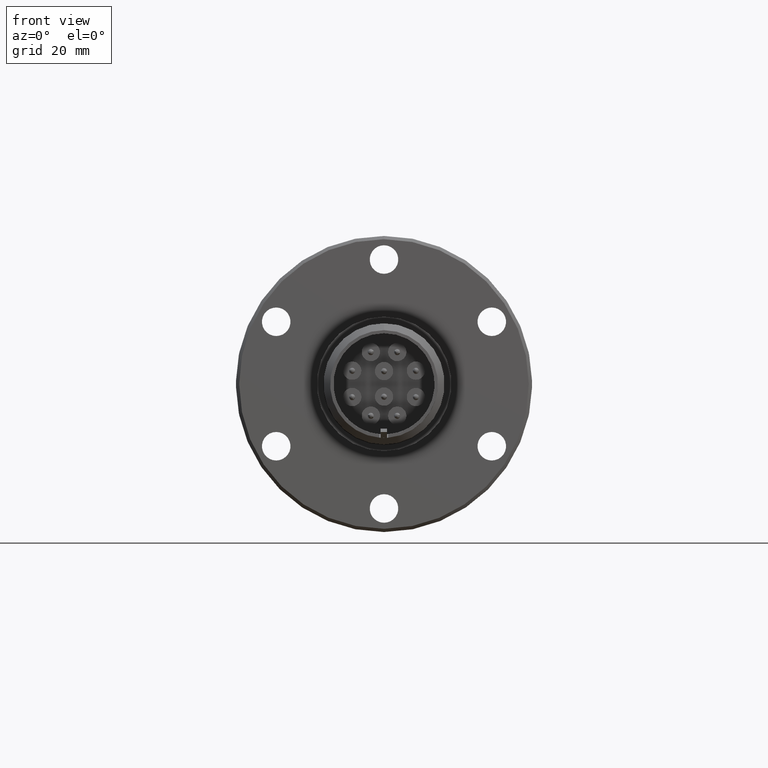
[diagram: clean part render]
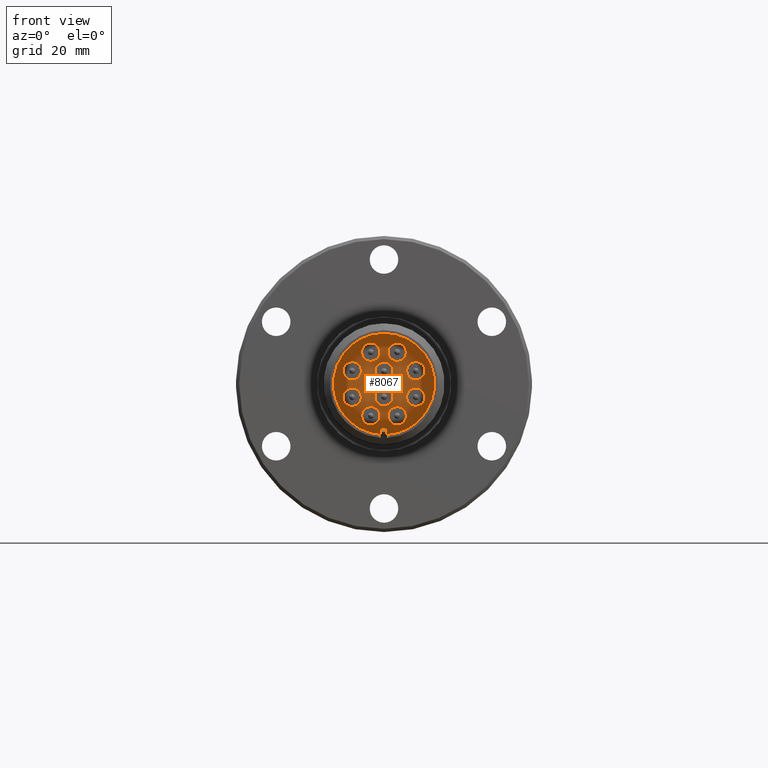
[diagram: same view with one face highlighted and labeled with its STEP entity id]
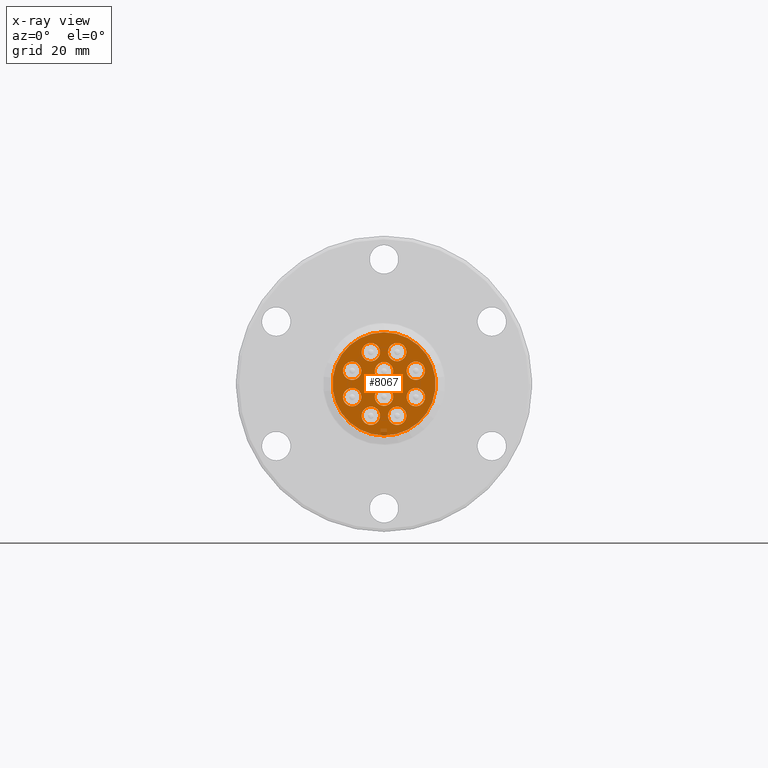
[diagram: x-ray of the same camera — body ghosted, the highlighted face saturated]
A machine part, front view. The second image highlights one B-rep face of the part: STEP entity #8067.
The next image is the same camera in x-ray: the body ghosted, the highlighted face saturated — about 7% of this face is hidden behind the body in this view.
In plain terms, the highlighted planar face has unit normal (0, -1, 0).
Its self-contained STEP definition (entity closure, byte-faithful):
#382 = FACE_BOUND ( 'NONE', #13019, .T. ) ;
#383 = FACE_BOUND ( 'NONE', #13022, .T. ) ;
#384 = FACE_BOUND ( 'NONE', #13011, .T. ) ;
#385 = FACE_BOUND ( 'NONE', #13010, .T. ) ;
#386 = FACE_BOUND ( 'NONE', #13009, .T. ) ;
#387 = FACE_BOUND ( 'NONE', #13008, .T. ) ;
#388 = FACE_OUTER_BOUND ( 'NONE', #13007, .T. ) ;
#1075 = CIRCLE ( 'NONE', #2245, 0.4799999999999999300 ) ;
#1456 = FACE_BOUND ( 'NONE', #13040, .T. ) ;
#1458 = FACE_BOUND ( 'NONE', #13104, .T. ) ;
#1470 = FACE_BOUND ( 'NONE', #13028, .T. ) ;
#1472 = FACE_BOUND ( 'NONE', #13027, .T. ) ;
#1477 = VERTEX_POINT ( 'NONE', #12975 ) ;
#1483 = VERTEX_POINT ( 'NONE', #12971 ) ;
#1664 = VERTEX_POINT ( 'NONE', #12769 ) ;
#1792 = VERTEX_POINT ( 'NONE', #2847 ) ;
#1794 = VERTEX_POINT ( 'NONE', #2840 ) ;
#1797 = VERTEX_POINT ( 'NONE', #2845 ) ;
#1817 = VERTEX_POINT ( 'NONE', #2801 ) ;
#1827 = VERTEX_POINT ( 'NONE', #2777 ) ;
#1841 = VERTEX_POINT ( 'NONE', #2765 ) ;
#1845 = VERTEX_POINT ( 'NONE', #2751 ) ;
#1848 = VERTEX_POINT ( 'NONE', #2749 ) ;
#1885 = VERTEX_POINT ( 'NONE', #2713 ) ;
#1886 = VERTEX_POINT ( 'NONE', #2702 ) ;
#1888 = VERTEX_POINT ( 'NONE', #2710 ) ;
#1889 = VERTEX_POINT ( 'NONE', #2708 ) ;
#1893 = VERTEX_POINT ( 'NONE', #2701 ) ;
#1922 = VERTEX_POINT ( 'NONE', #2663 ) ;
#2161 = EDGE_CURVE ( 'NONE', #9604, #9603, #1075, .T. ) ;
#2245 = AXIS2_PLACEMENT_3D ( 'NONE', #2544, #2543, #2542 ) ;
#2425 = AXIS2_PLACEMENT_3D ( 'NONE', #7556, #7573, #7551 ) ;
#2542 = DIRECTION ( 'NONE',  ( 0.0000000000000000000, 0.0000000000000000000, 1.000000000000000000 ) ) ;
#2543 = DIRECTION ( 'NONE',  ( -0.0000000000000000000, -1.000000000000000000, -0.0000000000000000000 ) ) ;
#2544 = CARTESIAN_POINT ( 'NONE',  ( 0.0000000000000000000, 0.3956508829132345800, 0.0000000000000000000 ) ) ;
#2663 = CARTESIAN_POINT ( 'NONE',  ( 0.1224586983568307500, 0.3956508829132345300, 0.3806414504036148000 ) ) ;
#2701 = CARTESIAN_POINT ( 'NONE',  ( -0.2956414504036146700, 0.3956508829132345300, -0.03745869835683106300 ) ) ;
#2702 = CARTESIAN_POINT ( 'NONE',  ( 0.2074586983568320900, 0.3956508829132345300, -0.2956414504036142800 ) ) ;
#2708 = CARTESIAN_POINT ( 'NONE',  ( 0.03745869835683208300, 0.3956508829132345300, -0.2956414504036142800 ) ) ;
#2710 = CARTESIAN_POINT ( 'NONE',  ( -0.3806414504036153000, 0.3956508829132345300, 0.1224586983568297200 ) ) ;
#2713 = CARTESIAN_POINT ( 'NONE',  ( -0.2106414504036152600, 0.3956508829132345300, 0.1224586983568297100 ) ) ;
#2749 = CARTESIAN_POINT ( 'NONE',  ( -0.03745869835683000200, 0.3956508829132345300, 0.2956414504036151700 ) ) ;
#2751 = CARTESIAN_POINT ( 'NONE',  ( -0.1224586983568286500, 0.3956508829132345300, -0.2106414504036157000 ) ) ;
#2765 = CARTESIAN_POINT ( 'NONE',  ( -0.2074586983568300300, 0.3956508829132345300, 0.2956414504036151700 ) ) ;
#2777 = CARTESIAN_POINT ( 'NONE',  ( -0.2956414504036146700, 0.3956508829132345300, -0.2074586983568310300 ) ) ;
#2801 = CARTESIAN_POINT ( 'NONE',  ( -9.451762055585959800E-017, 0.3956508829132345300, -0.2035000000000009900 ) ) ;
#2840 = CARTESIAN_POINT ( 'NONE',  ( 0.2956414504036139500, 0.3956508829132345300, 0.03745869835683311000 ) ) ;
#2845 = CARTESIAN_POINT ( 'NONE',  ( 0.2956414504036139500, 0.3956508829132345300, 0.2074586983568331200 ) ) ;
#2847 = CARTESIAN_POINT ( 'NONE',  ( -8.410812276310716800E-017, 0.3956508829132345300, -0.03350000000000093900 ) ) ;
#4347 = CARTESIAN_POINT ( 'NONE',  ( -0.1224586983568286700, 0.3956508829132345300, -0.3806414504036156900 ) ) ;
#4359 = CARTESIAN_POINT ( 'NONE',  ( 5.878304635907294700E-017, 0.3956508829132345800, -0.4799999999999999300 ) ) ;
#4360 = CARTESIAN_POINT ( 'NONE',  ( 0.0000000000000000000, 0.3956508829132345800, 0.4799999999999999300 ) ) ;
#4372 = CARTESIAN_POINT ( 'NONE',  ( 9.219986978616888100E-016, 0.3956508829132345300, 0.03350000000000095300 ) ) ;
#4373 = CARTESIAN_POINT ( 'NONE',  ( 9.324081956544414000E-016, 0.3956508829132345300, 0.2035000000000009600 ) ) ;
#5009 = CIRCLE ( 'NONE', #11131, 0.08500000000000003400 ) ;
#5010 = CIRCLE ( 'NONE', #11132, 0.08499999999999999200 ) ;
#5011 = CIRCLE ( 'NONE', #11133, 0.08500000000000002000 ) ;
#5012 = CIRCLE ( 'NONE', #11134, 0.08499999999999997800 ) ;
#5013 = CIRCLE ( 'NONE', #11135, 0.08499999999999999200 ) ;
#5014 = CIRCLE ( 'NONE', #11136, 0.08499999999999997800 ) ;
#5015 = CIRCLE ( 'NONE', #11137, 0.08500000000000002000 ) ;
#5016 = CIRCLE ( 'NONE', #11138, 0.08499999999999997800 ) ;
#5017 = CIRCLE ( 'NONE', #11139, 0.08500000000000002000 ) ;
#5018 = CIRCLE ( 'NONE', #11140, 0.08499999999999999200 ) ;
#5020 = CIRCLE ( 'NONE', #11142, 0.4799999999999999300 ) ;
#5904 = ORIENTED_EDGE ( 'NONE', *, *, #10252, .T. ) ;
#5905 = ORIENTED_EDGE ( 'NONE', *, *, #10056, .T. ) ;
#5906 = ORIENTED_EDGE ( 'NONE', *, *, #10012, .T. ) ;
#5907 = ORIENTED_EDGE ( 'NONE', *, *, #10243, .T. ) ;
#5911 = ORIENTED_EDGE ( 'NONE', *, *, #10068, .T. ) ;
#5915 = ORIENTED_EDGE ( 'NONE', *, *, #10030, .T. ) ;
#5916 = ORIENTED_EDGE ( 'NONE', *, *, #2161, .T. ) ;
#5918 = ORIENTED_EDGE ( 'NONE', *, *, #10241, .T. ) ;
#5919 = ORIENTED_EDGE ( 'NONE', *, *, #9912, .T. ) ;
#5922 = ORIENTED_EDGE ( 'NONE', *, *, #10042, .T. ) ;
#5924 = ORIENTED_EDGE ( 'NONE', *, *, #10244, .T. ) ;
#5925 = ORIENTED_EDGE ( 'NONE', *, *, #10004, .T. ) ;
#5926 = ORIENTED_EDGE ( 'NONE', *, *, #10250, .T. ) ;
#5927 = ORIENTED_EDGE ( 'NONE', *, *, #10242, .T. ) ;
#5928 = ORIENTED_EDGE ( 'NONE', *, *, #10248, .T. ) ;
#5930 = ORIENTED_EDGE ( 'NONE', *, *, #9934, .T. ) ;
#5931 = ORIENTED_EDGE ( 'NONE', *, *, #10085, .T. ) ;
#5933 = ORIENTED_EDGE ( 'NONE', *, *, #10245, .T. ) ;
#5934 = ORIENTED_EDGE ( 'NONE', *, *, #10246, .T. ) ;
#5935 = ORIENTED_EDGE ( 'NONE', *, *, #10247, .T. ) ;
#5936 = ORIENTED_EDGE ( 'NONE', *, *, #10075, .T. ) ;
#5944 = ORIENTED_EDGE ( 'NONE', *, *, #10249, .T. ) ;
#7551 = DIRECTION ( 'NONE',  ( 0.0000000000000000000, -0.0000000000000000000, -1.000000000000000000 ) ) ;
#7556 = CARTESIAN_POINT ( 'NONE',  ( 0.0000000000000000000, 0.3956508829132345300, -3.414809992080329000E-017 ) ) ;
#7563 = PLANE ( 'NONE',  #2425 ) ;
#7573 = DIRECTION ( 'NONE',  ( 0.0000000000000000000, -1.000000000000000000, 0.0000000000000000000 ) ) ;
#8067 = ADVANCED_FACE ( 'NONE', ( #1458, #382, #1470, #1456, #1472, #383, #384, #385, #386, #387, #388 ), #7563, .T. ) ;
#8558 = CARTESIAN_POINT ( 'NONE',  ( 0.1224586983568320800, 0.3956508829132345300, -0.2956414504036142800 ) ) ;
#8559 = DIRECTION ( 'NONE',  ( 8.659274570719409600E-017, 1.000000000000000000, -8.659274570719237100E-017 ) ) ;
#8560 = DIRECTION ( 'NONE',  ( 1.000000000000000000, 0.0000000000000000000, 0.0000000000000000000 ) ) ;
#8619 = CARTESIAN_POINT ( 'NONE',  ( -0.1224586983568286700, 0.3956508829132345300, -0.2956414504036157200 ) ) ;
#8620 = DIRECTION ( 'NONE',  ( 1.010753185866397800E-030, 1.000000000000000000, -1.224606353822372800E-016 ) ) ;
#8621 = DIRECTION ( 'NONE',  ( 0.0000000000000000000, 0.0000000000000000000, -1.000000000000000000 ) ) ;
#8808 = CARTESIAN_POINT ( 'NONE',  ( 9.219986978616888100E-016, 0.3956508829132345300, 0.1185000000000009500 ) ) ;
#8809 = DIRECTION ( 'NONE',  ( -1.556151395064886600E-031, 1.000000000000000000, 1.224606353822372800E-016 ) ) ;
#8810 = DIRECTION ( 'NONE',  ( 0.0000000000000000000, 0.0000000000000000000, -1.000000000000000000 ) ) ;
#8829 = CARTESIAN_POINT ( 'NONE',  ( 0.2956414504036161700, 0.3956508829132345300, -0.1224586983568276400 ) ) ;
#8830 = DIRECTION ( 'NONE',  ( 1.224606353822372800E-016, 1.000000000000000000, 1.438322209046352600E-030 ) ) ;
#8831 = DIRECTION ( 'NONE',  ( 1.000000000000000000, 0.0000000000000000000, 0.0000000000000000000 ) ) ;
#8873 = CARTESIAN_POINT ( 'NONE',  ( -0.2956414504036146700, 0.3956508829132345300, -0.1224586983568310400 ) ) ;
#8874 = DIRECTION ( 'NONE',  ( -8.659274570719266700E-017, 1.000000000000000000, -8.659274570719380100E-017 ) ) ;
#8875 = DIRECTION ( 'NONE',  ( 0.0000000000000000000, 0.0000000000000000000, -1.000000000000000000 ) ) ;
#8914 = CARTESIAN_POINT ( 'NONE',  ( -0.1224586983568300100, 0.3956508829132345300, 0.2956414504036151700 ) ) ;
#8915 = DIRECTION ( 'NONE',  ( -8.659274570719350500E-017, 1.000000000000000000, 8.659274570719298700E-017 ) ) ;
#8916 = DIRECTION ( 'NONE',  ( 1.000000000000000000, 0.0000000000000000000, 0.0000000000000000000 ) ) ;
#8952 = CARTESIAN_POINT ( 'NONE',  ( 0.2956414504036139500, 0.3956508829132345300, 0.1224586983568331100 ) ) ;
#8954 = DIRECTION ( 'NONE',  ( 8.659274570719207500E-017, 1.000000000000000000, 8.659274570719440500E-017 ) ) ;
#8956 = DIRECTION ( 'NONE',  ( 0.0000000000000000000, 0.0000000000000000000, -1.000000000000000000 ) ) ;
#9014 = CARTESIAN_POINT ( 'NONE',  ( -9.451762055585959800E-017, 0.3956508829132345300, -0.1185000000000009500 ) ) ;
#9015 = DIRECTION ( 'NONE',  ( 1.010753185866397800E-030, 1.000000000000000000, -1.224606353822372800E-016 ) ) ;
#9017 = DIRECTION ( 'NONE',  ( 0.0000000000000000000, 0.0000000000000000000, -1.000000000000000000 ) ) ;
#9049 = CARTESIAN_POINT ( 'NONE',  ( 0.1224586983568307400, 0.3956508829132345300, 0.2956414504036148400 ) ) ;
#9051 = DIRECTION ( 'NONE',  ( -1.556151395064886600E-031, 1.000000000000000000, 1.224606353822372800E-016 ) ) ;
#9052 = DIRECTION ( 'NONE',  ( 0.0000000000000000000, 0.0000000000000000000, -1.000000000000000000 ) ) ;
#9093 = CARTESIAN_POINT ( 'NONE',  ( -0.2956414504036152800, 0.3956508829132345300, 0.1224586983568297100 ) ) ;
#9094 = DIRECTION ( 'NONE',  ( -1.224606353822372800E-016, 1.000000000000000000, -5.831841626864432400E-031 ) ) ;
#9095 = DIRECTION ( 'NONE',  ( 1.000000000000000000, 0.0000000000000000000, 0.0000000000000000000 ) ) ;
#9486 = AXIS2_PLACEMENT_3D ( 'NONE', #8558, #8559, #8560 ) ;
#9591 = VERTEX_POINT ( 'NONE', #4347 ) ;
#9603 = VERTEX_POINT ( 'NONE', #4359 ) ;
#9604 = VERTEX_POINT ( 'NONE', #4360 ) ;
#9616 = VERTEX_POINT ( 'NONE', #4372 ) ;
#9617 = VERTEX_POINT ( 'NONE', #4373 ) ;
#9912 = EDGE_CURVE ( 'NONE', #1889, #1886, #10526, .T. ) ;
#9934 = EDGE_CURVE ( 'NONE', #1845, #9591, #10553, .T. ) ;
#10004 = EDGE_CURVE ( 'NONE', #9617, #9616, #10646, .T. ) ;
#10012 = EDGE_CURVE ( 'NONE', #1664, #1483, #10658, .T. ) ;
#10030 = EDGE_CURVE ( 'NONE', #1893, #1827, #10680, .T. ) ;
#10042 = EDGE_CURVE ( 'NONE', #1841, #1848, #10703, .T. ) ;
#10056 = EDGE_CURVE ( 'NONE', #1797, #1794, #10719, .T. ) ;
#10068 = EDGE_CURVE ( 'NONE', #1792, #1817, #10739, .T. ) ;
#10075 = EDGE_CURVE ( 'NONE', #1922, #1477, #10747, .T. ) ;
#10085 = EDGE_CURVE ( 'NONE', #1888, #1885, #10761, .T. ) ;
#10241 = EDGE_CURVE ( 'NONE', #1817, #1792, #5009, .T. ) ;
#10242 = EDGE_CURVE ( 'NONE', #1794, #1797, #5010, .T. ) ;
#10243 = EDGE_CURVE ( 'NONE', #1848, #1841, #5011, .T. ) ;
#10244 = EDGE_CURVE ( 'NONE', #1827, #1893, #5012, .T. ) ;
#10245 = EDGE_CURVE ( 'NONE', #1886, #1889, #5013, .T. ) ;
#10246 = EDGE_CURVE ( 'NONE', #9591, #1845, #5014, .T. ) ;
#10247 = EDGE_CURVE ( 'NONE', #1885, #1888, #5015, .T. ) ;
#10248 = EDGE_CURVE ( 'NONE', #1477, #1922, #5016, .T. ) ;
#10249 = EDGE_CURVE ( 'NONE', #1483, #1664, #5017, .T. ) ;
#10250 = EDGE_CURVE ( 'NONE', #9616, #9617, #5018, .T. ) ;
#10252 = EDGE_CURVE ( 'NONE', #9603, #9604, #5020, .T. ) ;
#10526 = CIRCLE ( 'NONE', #9486, 0.08499999999999999200 ) ;
#10553 = CIRCLE ( 'NONE', #10949, 0.08499999999999997800 ) ;
#10646 = CIRCLE ( 'NONE', #10996, 0.08499999999999999200 ) ;
#10658 = CIRCLE ( 'NONE', #11000, 0.08500000000000002000 ) ;
#10680 = CIRCLE ( 'NONE', #11009, 0.08499999999999997800 ) ;
#10703 = CIRCLE ( 'NONE', #11015, 0.08500000000000002000 ) ;
#10719 = CIRCLE ( 'NONE', #11023, 0.08499999999999999200 ) ;
#10739 = CIRCLE ( 'NONE', #11030, 0.08500000000000003400 ) ;
#10747 = CIRCLE ( 'NONE', #11034, 0.08499999999999997800 ) ;
#10761 = CIRCLE ( 'NONE', #11039, 0.08500000000000002000 ) ;
#10949 = AXIS2_PLACEMENT_3D ( 'NONE', #8619, #8620, #8621 ) ;
#10996 = AXIS2_PLACEMENT_3D ( 'NONE', #8808, #8809, #8810 ) ;
#11000 = AXIS2_PLACEMENT_3D ( 'NONE', #8829, #8830, #8831 ) ;
#11009 = AXIS2_PLACEMENT_3D ( 'NONE', #8873, #8874, #8875 ) ;
#11015 = AXIS2_PLACEMENT_3D ( 'NONE', #8914, #8915, #8916 ) ;
#11023 = AXIS2_PLACEMENT_3D ( 'NONE', #8952, #8954, #8956 ) ;
#11030 = AXIS2_PLACEMENT_3D ( 'NONE', #9014, #9015, #9017 ) ;
#11034 = AXIS2_PLACEMENT_3D ( 'NONE', #9049, #9051, #9052 ) ;
#11039 = AXIS2_PLACEMENT_3D ( 'NONE', #9093, #9094, #9095 ) ;
#11131 = AXIS2_PLACEMENT_3D ( 'NONE', #13559, #13560, #13561 ) ;
#11132 = AXIS2_PLACEMENT_3D ( 'NONE', #13562, #13563, #13564 ) ;
#11133 = AXIS2_PLACEMENT_3D ( 'NONE', #13565, #13566, #13567 ) ;
#11134 = AXIS2_PLACEMENT_3D ( 'NONE', #13568, #13569, #13570 ) ;
#11135 = AXIS2_PLACEMENT_3D ( 'NONE', #13571, #13572, #13573 ) ;
#11136 = AXIS2_PLACEMENT_3D ( 'NONE', #13574, #13575, #13576 ) ;
#11137 = AXIS2_PLACEMENT_3D ( 'NONE', #13577, #13578, #13579 ) ;
#11138 = AXIS2_PLACEMENT_3D ( 'NONE', #13580, #13581, #13582 ) ;
#11139 = AXIS2_PLACEMENT_3D ( 'NONE', #13583, #13584, #13585 ) ;
#11140 = AXIS2_PLACEMENT_3D ( 'NONE', #13586, #13587, #13588 ) ;
#11142 = AXIS2_PLACEMENT_3D ( 'NONE', #13596, #13597, #13598 ) ;
#12769 = CARTESIAN_POINT ( 'NONE',  ( 0.2106414504036161500, 0.3956508829132345300, -0.1224586983568276300 ) ) ;
#12971 = CARTESIAN_POINT ( 'NONE',  ( 0.3806414504036161900, 0.3956508829132345300, -0.1224586983568276400 ) ) ;
#12975 = CARTESIAN_POINT ( 'NONE',  ( 0.1224586983568307400, 0.3956508829132345300, 0.2106414504036148700 ) ) ;
#13007 = EDGE_LOOP ( 'NONE', ( #5916, #5904 ) ) ;
#13008 = EDGE_LOOP ( 'NONE', ( #5918, #5911 ) ) ;
#13009 = EDGE_LOOP ( 'NONE', ( #5927, #5905 ) ) ;
#13010 = EDGE_LOOP ( 'NONE', ( #5907, #5922 ) ) ;
#13011 = EDGE_LOOP ( 'NONE', ( #5924, #5915 ) ) ;
#13019 = EDGE_LOOP ( 'NONE', ( #5944, #5906 ) ) ;
#13022 = EDGE_LOOP ( 'NONE', ( #5933, #5919 ) ) ;
#13027 = EDGE_LOOP ( 'NONE', ( #5934, #5930 ) ) ;
#13028 = EDGE_LOOP ( 'NONE', ( #5928, #5936 ) ) ;
#13040 = EDGE_LOOP ( 'NONE', ( #5935, #5931 ) ) ;
#13104 = EDGE_LOOP ( 'NONE', ( #5926, #5925 ) ) ;
#13559 = CARTESIAN_POINT ( 'NONE',  ( -9.451762055585959800E-017, 0.3956508829132345300, -0.1185000000000009500 ) ) ;
#13560 = DIRECTION ( 'NONE',  ( 1.010753185866397800E-030, 1.000000000000000000, -1.224606353822372800E-016 ) ) ;
#13561 = DIRECTION ( 'NONE',  ( 0.0000000000000000000, 0.0000000000000000000, -1.000000000000000000 ) ) ;
#13562 = CARTESIAN_POINT ( 'NONE',  ( 0.2956414504036139500, 0.3956508829132345300, 0.1224586983568331100 ) ) ;
#13563 = DIRECTION ( 'NONE',  ( 8.659274570719207500E-017, 1.000000000000000000, 8.659274570719440500E-017 ) ) ;
#13564 = DIRECTION ( 'NONE',  ( 0.0000000000000000000, 0.0000000000000000000, -1.000000000000000000 ) ) ;
#13565 = CARTESIAN_POINT ( 'NONE',  ( -0.1224586983568300100, 0.3956508829132345300, 0.2956414504036151700 ) ) ;
#13566 = DIRECTION ( 'NONE',  ( -8.659274570719350500E-017, 1.000000000000000000, 8.659274570719298700E-017 ) ) ;
#13567 = DIRECTION ( 'NONE',  ( 1.000000000000000000, 0.0000000000000000000, 0.0000000000000000000 ) ) ;
#13568 = CARTESIAN_POINT ( 'NONE',  ( -0.2956414504036146700, 0.3956508829132345300, -0.1224586983568310400 ) ) ;
#13569 = DIRECTION ( 'NONE',  ( -8.659274570719266700E-017, 1.000000000000000000, -8.659274570719380100E-017 ) ) ;
#13570 = DIRECTION ( 'NONE',  ( 0.0000000000000000000, 0.0000000000000000000, -1.000000000000000000 ) ) ;
#13571 = CARTESIAN_POINT ( 'NONE',  ( 0.1224586983568320800, 0.3956508829132345300, -0.2956414504036142800 ) ) ;
#13572 = DIRECTION ( 'NONE',  ( 8.659274570719409600E-017, 1.000000000000000000, -8.659274570719237100E-017 ) ) ;
#13573 = DIRECTION ( 'NONE',  ( 1.000000000000000000, 0.0000000000000000000, 0.0000000000000000000 ) ) ;
#13574 = CARTESIAN_POINT ( 'NONE',  ( -0.1224586983568286700, 0.3956508829132345300, -0.2956414504036157200 ) ) ;
#13575 = DIRECTION ( 'NONE',  ( 1.010753185866397800E-030, 1.000000000000000000, -1.224606353822372800E-016 ) ) ;
#13576 = DIRECTION ( 'NONE',  ( 0.0000000000000000000, 0.0000000000000000000, -1.000000000000000000 ) ) ;
#13577 = CARTESIAN_POINT ( 'NONE',  ( -0.2956414504036152800, 0.3956508829132345300, 0.1224586983568297100 ) ) ;
#13578 = DIRECTION ( 'NONE',  ( -1.224606353822372800E-016, 1.000000000000000000, -5.831841626864432400E-031 ) ) ;
#13579 = DIRECTION ( 'NONE',  ( 1.000000000000000000, 0.0000000000000000000, 0.0000000000000000000 ) ) ;
#13580 = CARTESIAN_POINT ( 'NONE',  ( 0.1224586983568307400, 0.3956508829132345300, 0.2956414504036148400 ) ) ;
#13581 = DIRECTION ( 'NONE',  ( -1.556151395064886600E-031, 1.000000000000000000, 1.224606353822372800E-016 ) ) ;
#13582 = DIRECTION ( 'NONE',  ( 0.0000000000000000000, 0.0000000000000000000, -1.000000000000000000 ) ) ;
#13583 = CARTESIAN_POINT ( 'NONE',  ( 0.2956414504036161700, 0.3956508829132345300, -0.1224586983568276400 ) ) ;
#13584 = DIRECTION ( 'NONE',  ( 1.224606353822372800E-016, 1.000000000000000000, 1.438322209046352600E-030 ) ) ;
#13585 = DIRECTION ( 'NONE',  ( 1.000000000000000000, 0.0000000000000000000, 0.0000000000000000000 ) ) ;
#13586 = CARTESIAN_POINT ( 'NONE',  ( 9.219986978616888100E-016, 0.3956508829132345300, 0.1185000000000009500 ) ) ;
#13587 = DIRECTION ( 'NONE',  ( -1.556151395064886600E-031, 1.000000000000000000, 1.224606353822372800E-016 ) ) ;
#13588 = DIRECTION ( 'NONE',  ( 0.0000000000000000000, 0.0000000000000000000, -1.000000000000000000 ) ) ;
#13596 = CARTESIAN_POINT ( 'NONE',  ( 0.0000000000000000000, 0.3956508829132345800, 0.0000000000000000000 ) ) ;
#13597 = DIRECTION ( 'NONE',  ( -0.0000000000000000000, -1.000000000000000000, -0.0000000000000000000 ) ) ;
#13598 = DIRECTION ( 'NONE',  ( 0.0000000000000000000, 0.0000000000000000000, 1.000000000000000000 ) ) ;